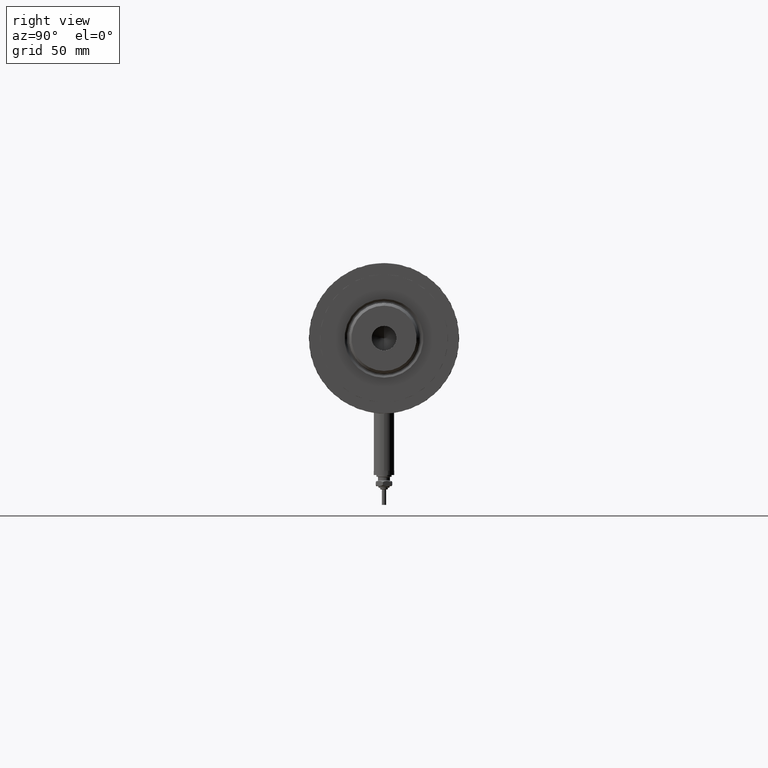
[diagram: clean part render]
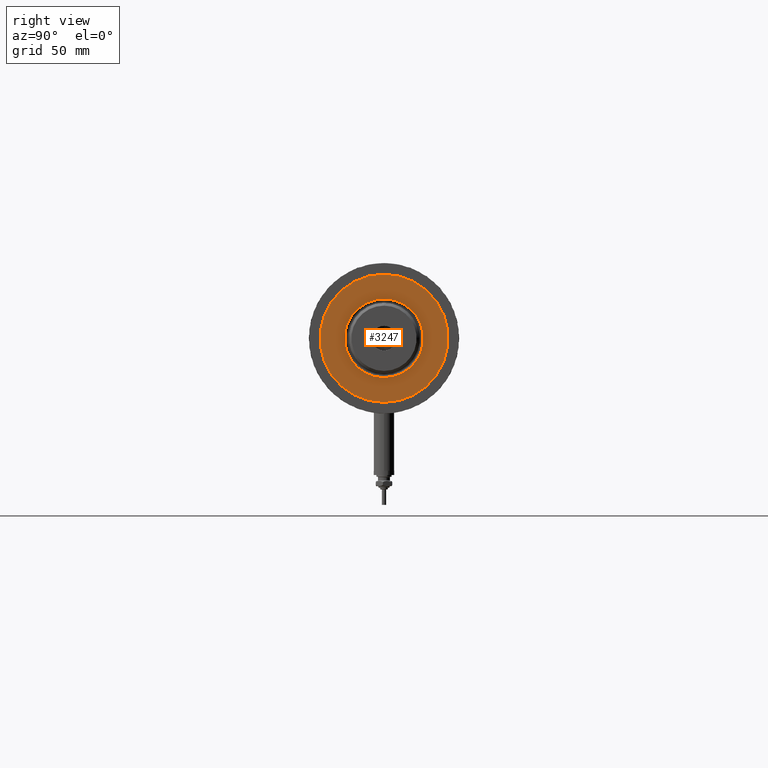
[diagram: same view with one face highlighted and labeled with its STEP entity id]
A machine part, right view. The second image highlights one B-rep face of the part: STEP entity #3247.
In plain terms, the highlighted planar face has unit normal (1, 0, -0).
Its self-contained STEP definition (entity closure, byte-faithful):
#55 = CIRCLE ( 'NONE', #3891, 23.05000000000002913 ) ;
#185 = DIRECTION ( 'NONE',  ( 1.000000000000000000, 0.000000000000000000, 0.000000000000000000 ) ) ;
#203 = DIRECTION ( 'NONE',  ( -0.000000000000000000, -0.000000000000000000, -1.000000000000000000 ) ) ;
#360 = AXIS2_PLACEMENT_3D ( 'NONE', #2477, #203, #5768 ) ;
#571 = VERTEX_POINT ( 'NONE', #918 ) ;
#594 = CARTESIAN_POINT ( 'NONE',  ( -23.05000000000002913, 2.822810872034651791E-15, 59.89999999999999147 ) ) ;
#706 = DIRECTION ( 'NONE',  ( -0.000000000000000000, -0.000000000000000000, -1.000000000000000000 ) ) ;
#779 = VERTEX_POINT ( 'NONE', #3937 ) ;
#796 = VERTEX_POINT ( 'NONE', #5987 ) ;
#836 = CIRCLE ( 'NONE', #5422, 37.50000000000000711 ) ;
#918 = CARTESIAN_POINT ( 'NONE',  ( 37.50000000000000711, 4.592425496802575156E-15, 59.89999999999999147 ) ) ;
#1086 = FACE_BOUND ( 'NONE', #1492, .T. ) ;
#1152 = CARTESIAN_POINT ( 'NONE',  ( 0.000000000000000000, 0.000000000000000000, 59.89999999999999147 ) ) ;
#1176 = DIRECTION ( 'NONE',  ( 0.000000000000000000, 0.000000000000000000, 1.000000000000000000 ) ) ;
#1492 = EDGE_LOOP ( 'NONE', ( #3914, #4339 ) ) ;
#1678 = DIRECTION ( 'NONE',  ( 1.000000000000000000, 0.000000000000000000, -0.000000000000000000 ) ) ;
#1765 = AXIS2_PLACEMENT_3D ( 'NONE', #2598, #3593, #1678 ) ;
#1864 = CIRCLE ( 'NONE', #360, 23.05000000000002913 ) ;
#2477 = CARTESIAN_POINT ( 'NONE',  ( 0.000000000000000000, 0.000000000000000000, 59.89999999999999147 ) ) ;
#2598 = CARTESIAN_POINT ( 'NONE',  ( 0.000000000000000000, 0.000000000000000000, 59.89999999999999147 ) ) ;
#2732 = EDGE_CURVE ( 'NONE', #796, #571, #5696, .T. ) ;
#2764 = VERTEX_POINT ( 'NONE', #594 ) ;
#2774 = EDGE_CURVE ( 'NONE', #2764, #779, #55, .T. ) ;
#2934 = FACE_OUTER_BOUND ( 'NONE', #4871, .T. ) ;
#3006 = DIRECTION ( 'NONE',  ( 0.000000000000000000, 0.000000000000000000, 1.000000000000000000 ) ) ;
#3247 = ADVANCED_FACE ( 'NONE', ( #1086, #2934 ), #5687, .T. ) ;
#3375 = DIRECTION ( 'NONE',  ( 1.000000000000000000, 0.000000000000000000, 0.000000000000000000 ) ) ;
#3593 = DIRECTION ( 'NONE',  ( 0.000000000000000000, 0.000000000000000000, 1.000000000000000000 ) ) ;
#3696 = AXIS2_PLACEMENT_3D ( 'NONE', #1152, #3006, #185 ) ;
#3752 = ORIENTED_EDGE ( 'NONE', *, *, #2732, .T. ) ;
#3845 = CARTESIAN_POINT ( 'NONE',  ( 0.000000000000000000, 0.000000000000000000, 59.89999999999999147 ) ) ;
#3891 = AXIS2_PLACEMENT_3D ( 'NONE', #3845, #706, #3375 ) ;
#3914 = ORIENTED_EDGE ( 'NONE', *, *, #4522, .T. ) ;
#3937 = CARTESIAN_POINT ( 'NONE',  ( 23.05000000000002913, 0.000000000000000000, 59.89999999999999147 ) ) ;
#4339 = ORIENTED_EDGE ( 'NONE', *, *, #2774, .T. ) ;
#4522 = EDGE_CURVE ( 'NONE', #779, #2764, #1864, .T. ) ;
#4681 = ORIENTED_EDGE ( 'NONE', *, *, #5106, .T. ) ;
#4871 = EDGE_LOOP ( 'NONE', ( #3752, #4681 ) ) ;
#5106 = EDGE_CURVE ( 'NONE', #571, #796, #836, .T. ) ;
#5422 = AXIS2_PLACEMENT_3D ( 'NONE', #5977, #1176, #5947 ) ;
#5687 = PLANE ( 'NONE',  #1765 ) ;
#5696 = CIRCLE ( 'NONE', #3696, 37.50000000000000711 ) ;
#5768 = DIRECTION ( 'NONE',  ( 1.000000000000000000, 0.000000000000000000, 0.000000000000000000 ) ) ;
#5947 = DIRECTION ( 'NONE',  ( 1.000000000000000000, 0.000000000000000000, 0.000000000000000000 ) ) ;
#5977 = CARTESIAN_POINT ( 'NONE',  ( 0.000000000000000000, 0.000000000000000000, 59.89999999999999147 ) ) ;
#5987 = CARTESIAN_POINT ( 'NONE',  ( -37.50000000000000711, 0.000000000000000000, 59.89999999999999147 ) ) ;